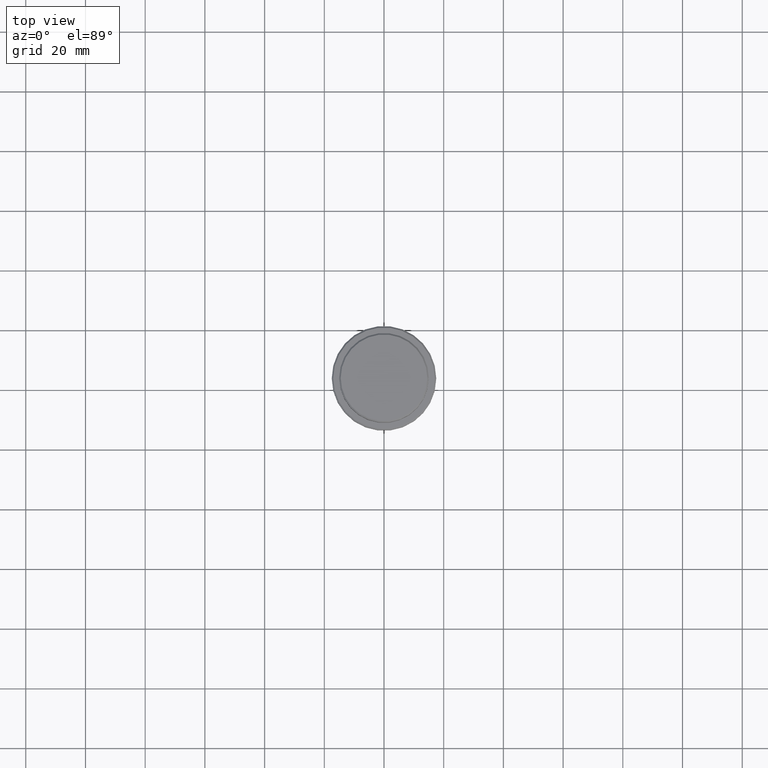
[diagram: clean part render]
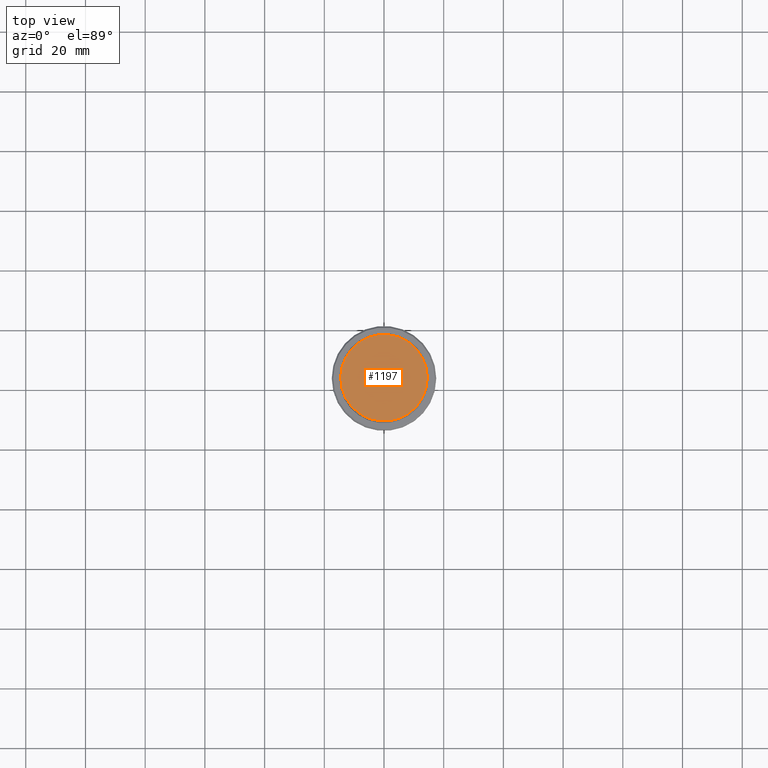
[diagram: same view with one face highlighted and labeled with its STEP entity id]
A machine part, top view. The second image highlights one B-rep face of the part: STEP entity #1197.
In plain terms, the highlighted planar face has unit normal (0, -0, 1).
Its self-contained STEP definition (entity closure, byte-faithful):
#10 = CARTESIAN_POINT ( 'NONE',  ( 14.50000000000003908, 1.806354028742348168E-15, 0.000000000000000000 ) ) ;
#42 = VERTEX_POINT ( 'NONE', #10 ) ;
#50 = DIRECTION ( 'NONE',  ( 1.000000000000000000, 0.000000000000000000, 0.000000000000000000 ) ) ;
#163 = CARTESIAN_POINT ( 'NONE',  ( 0.000000000000000000, 0.000000000000000000, 0.000000000000000000 ) ) ;
#170 = CIRCLE ( 'NONE', #781, 14.50000000000003908 ) ;
#176 = FACE_OUTER_BOUND ( 'NONE', #812, .T. ) ;
#297 = CARTESIAN_POINT ( 'NONE',  ( 0.000000000000000000, 0.000000000000000000, 0.000000000000000000 ) ) ;
#409 = ORIENTED_EDGE ( 'NONE', *, *, #1115, .T. ) ;
#448 = CIRCLE ( 'NONE', #1241, 14.50000000000003908 ) ;
#487 = CARTESIAN_POINT ( 'NONE',  ( -14.50000000000003908, 0.000000000000000000, 0.000000000000000000 ) ) ;
#612 = PLANE ( 'NONE',  #905 ) ;
#781 = AXIS2_PLACEMENT_3D ( 'NONE', #163, #1207, #50 ) ;
#792 = EDGE_CURVE ( 'NONE', #1071, #42, #448, .T. ) ;
#812 = EDGE_LOOP ( 'NONE', ( #1229, #409 ) ) ;
#905 = AXIS2_PLACEMENT_3D ( 'NONE', #297, #959, #1069 ) ;
#937 = CARTESIAN_POINT ( 'NONE',  ( 0.000000000000000000, 0.000000000000000000, 0.000000000000000000 ) ) ;
#959 = DIRECTION ( 'NONE',  ( 0.000000000000000000, -0.000000000000000000, 1.000000000000000000 ) ) ;
#1069 = DIRECTION ( 'NONE',  ( 1.000000000000000000, 0.000000000000000000, 0.000000000000000000 ) ) ;
#1071 = VERTEX_POINT ( 'NONE', #487 ) ;
#1115 = EDGE_CURVE ( 'NONE', #42, #1071, #170, .T. ) ;
#1197 = ADVANCED_FACE ( 'NONE', ( #176 ), #612, .T. ) ;
#1207 = DIRECTION ( 'NONE',  ( -0.000000000000000000, -0.000000000000000000, 1.000000000000000000 ) ) ;
#1229 = ORIENTED_EDGE ( 'NONE', *, *, #792, .T. ) ;
#1241 = AXIS2_PLACEMENT_3D ( 'NONE', #937, #1266, #1355 ) ;
#1266 = DIRECTION ( 'NONE',  ( -0.000000000000000000, -0.000000000000000000, 1.000000000000000000 ) ) ;
#1355 = DIRECTION ( 'NONE',  ( 1.000000000000000000, 0.000000000000000000, 0.000000000000000000 ) ) ;